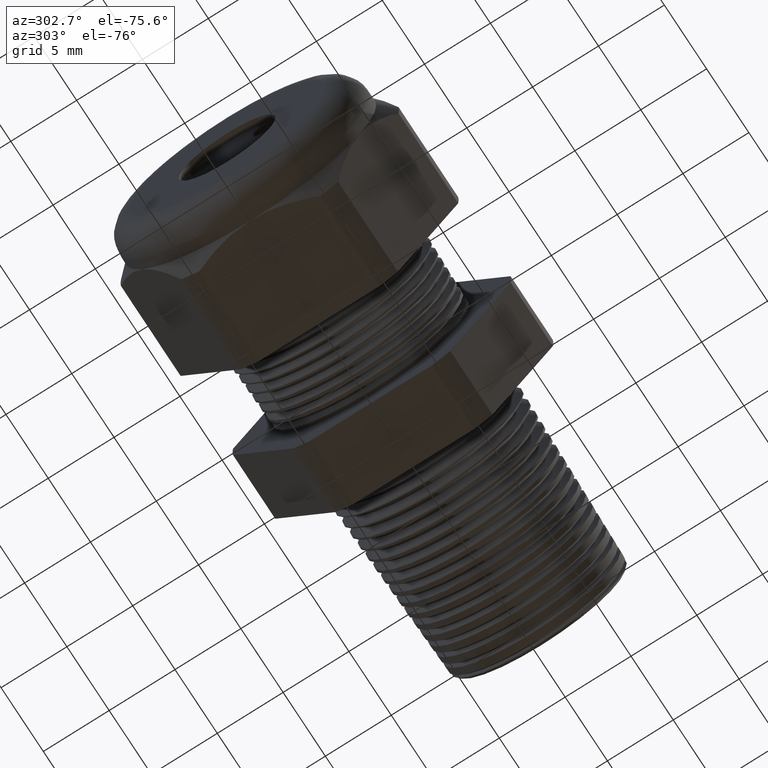
[diagram: clean part render]
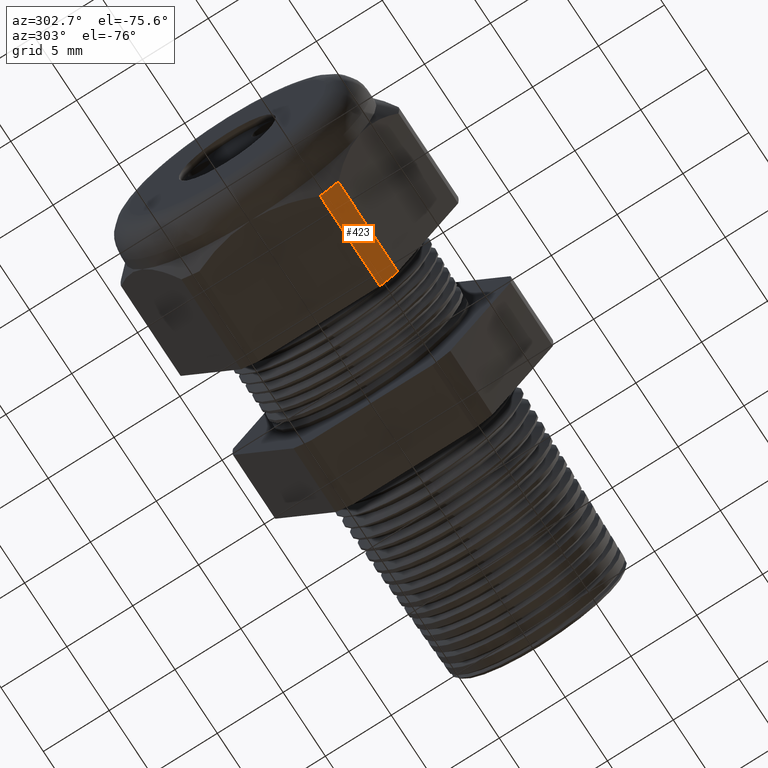
[diagram: same view with one face highlighted and labeled with its STEP entity id]
A machine part, auxiliary view. The second image highlights one B-rep face of the part: STEP entity #423.
In plain terms, the highlighted cylindrical surface (partial cylindrical patch) has radius 10.5727 mm, axis along (-1, 0, 0).
Its self-contained STEP definition (entity closure, byte-faithful):
#361 = EDGE_CURVE ( 'NONE', #362, #363, #2403, .T. ) ;
#362 = VERTEX_POINT ( 'NONE', #2399 ) ;
#363 = VERTEX_POINT ( 'NONE', #2398 ) ;
#423 = ADVANCED_FACE ( 'NONE', ( #2554 ), #2552, .T. ) ;
#424 = EDGE_LOOP ( 'NONE', ( #425, #429, #431, #432 ) ) ;
#425 = ORIENTED_EDGE ( 'NONE', *, *, #426, .T. ) ;
#426 = EDGE_CURVE ( 'NONE', #427, #428, #2553, .T. ) ;
#427 = VERTEX_POINT ( 'NONE', #2543 ) ;
#428 = VERTEX_POINT ( 'NONE', #2544 ) ;
#429 = ORIENTED_EDGE ( 'NONE', *, *, #430, .T. ) ;
#430 = EDGE_CURVE ( 'NONE', #428, #363, #2608, .T. ) ;
#431 = ORIENTED_EDGE ( 'NONE', *, *, #361, .F. ) ;
#432 = ORIENTED_EDGE ( 'NONE', *, *, #433, .F. ) ;
#433 = EDGE_CURVE ( 'NONE', #427, #362, #2603, .T. ) ;
#2398 = CARTESIAN_POINT ( 'NONE',  ( -1.028513779527559000, -0.1806628420566883700, -0.3750000000000001100 ) ) ;
#2399 = CARTESIAN_POINT ( 'NONE',  ( -0.7508661417322833900, -0.1806628420566883900, -0.3750000000000001100 ) ) ;
#2400 = DIRECTION ( 'NONE',  ( -1.000000000000000000, 0.0000000000000000000, 0.0000000000000000000 ) ) ;
#2401 = VECTOR ( 'NONE', #2400, 39.37007874015748100 ) ;
#2402 = CARTESIAN_POINT ( 'NONE',  ( 0.2800000000000000300, -0.1806628420566883900, -0.3750000000000001100 ) ) ;
#2403 = LINE ( 'NONE', #2402, #2401 ) ;
#2543 = CARTESIAN_POINT ( 'NONE',  ( -0.7508661417322833900, -0.2344281053908202100, -0.3439586107409880500 ) ) ;
#2544 = CARTESIAN_POINT ( 'NONE',  ( -1.028513779527559000, -0.2344281053908201800, -0.3439586107409879900 ) ) ;
#2545 = DIRECTION ( 'NONE',  ( -1.000000000000000000, 0.0000000000000000000, 0.0000000000000000000 ) ) ;
#2546 = VECTOR ( 'NONE', #2545, 39.37007874015748100 ) ;
#2547 = CARTESIAN_POINT ( 'NONE',  ( 0.2800000000000000300, -0.2344281053908202100, -0.3439586107409880500 ) ) ;
#2548 = DIRECTION ( 'NONE',  ( 0.0000000000000000000, 0.0000000000000000000, 1.000000000000000000 ) ) ;
#2549 = DIRECTION ( 'NONE',  ( -1.000000000000000000, 0.0000000000000000000, 0.0000000000000000000 ) ) ;
#2550 = CARTESIAN_POINT ( 'NONE',  ( 0.2800000000000000300, 0.0000000000000000000, 0.0000000000000000000 ) ) ;
#2551 = AXIS2_PLACEMENT_3D ( 'NONE', #2550, #2549, #2548 ) ;
#2552 = CYLINDRICAL_SURFACE ( 'NONE', #2551, 0.4162500000000000100 ) ;
#2553 = LINE ( 'NONE', #2547, #2546 ) ;
#2554 = FACE_OUTER_BOUND ( 'NONE', #424, .T. ) ;
#2599 = DIRECTION ( 'NONE',  ( 0.0000000000000000000, 0.0000000000000000000, -1.000000000000000000 ) ) ;
#2600 = DIRECTION ( 'NONE',  ( 1.000000000000000000, 0.0000000000000000000, 0.0000000000000000000 ) ) ;
#2601 = CARTESIAN_POINT ( 'NONE',  ( -0.7508661417322833900, 0.0000000000000000000, 0.0000000000000000000 ) ) ;
#2602 = AXIS2_PLACEMENT_3D ( 'NONE', #2601, #2600, #2599 ) ;
#2603 = CIRCLE ( 'NONE', #2602, 0.4162500000000000100 ) ;
#2604 = DIRECTION ( 'NONE',  ( 0.0000000000000000000, 0.0000000000000000000, -1.000000000000000000 ) ) ;
#2605 = DIRECTION ( 'NONE',  ( 1.000000000000000000, 0.0000000000000000000, 0.0000000000000000000 ) ) ;
#2606 = CARTESIAN_POINT ( 'NONE',  ( -1.028513779527559000, 0.0000000000000000000, 0.0000000000000000000 ) ) ;
#2607 = AXIS2_PLACEMENT_3D ( 'NONE', #2606, #2605, #2604 ) ;
#2608 = CIRCLE ( 'NONE', #2607, 0.4162500000000000100 ) ;